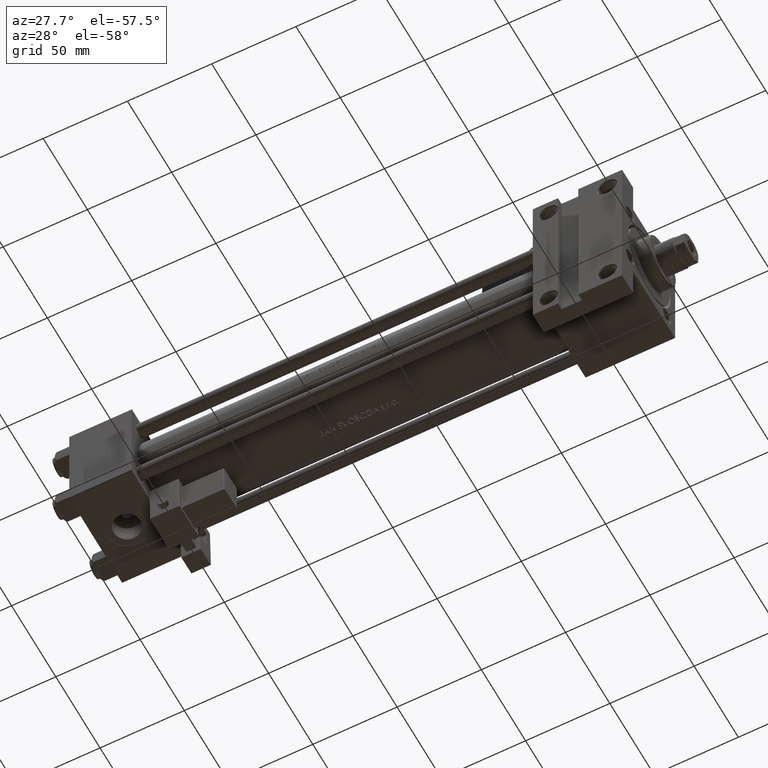
[diagram: clean part render]
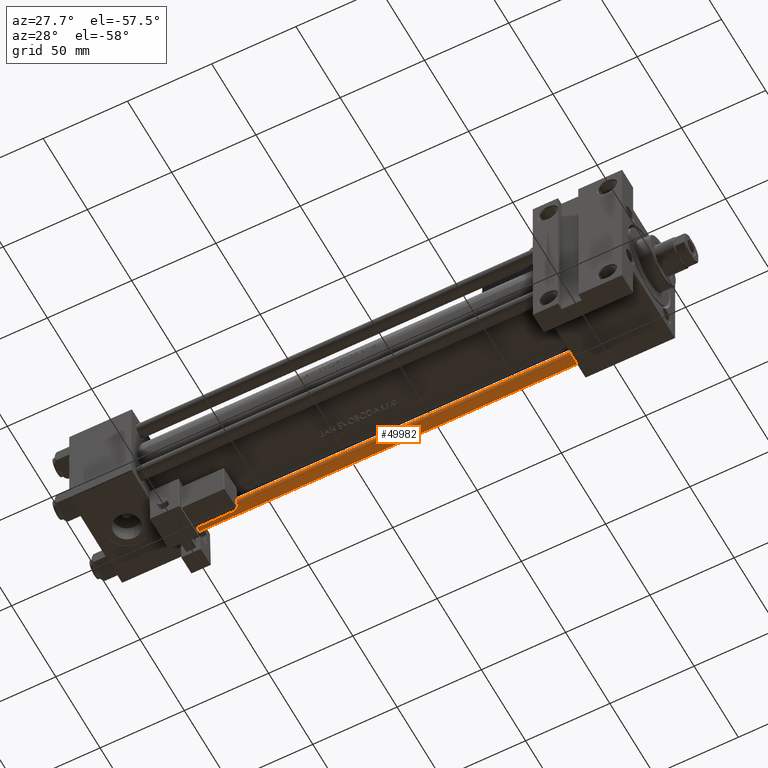
[diagram: same view with one face highlighted and labeled with its STEP entity id]
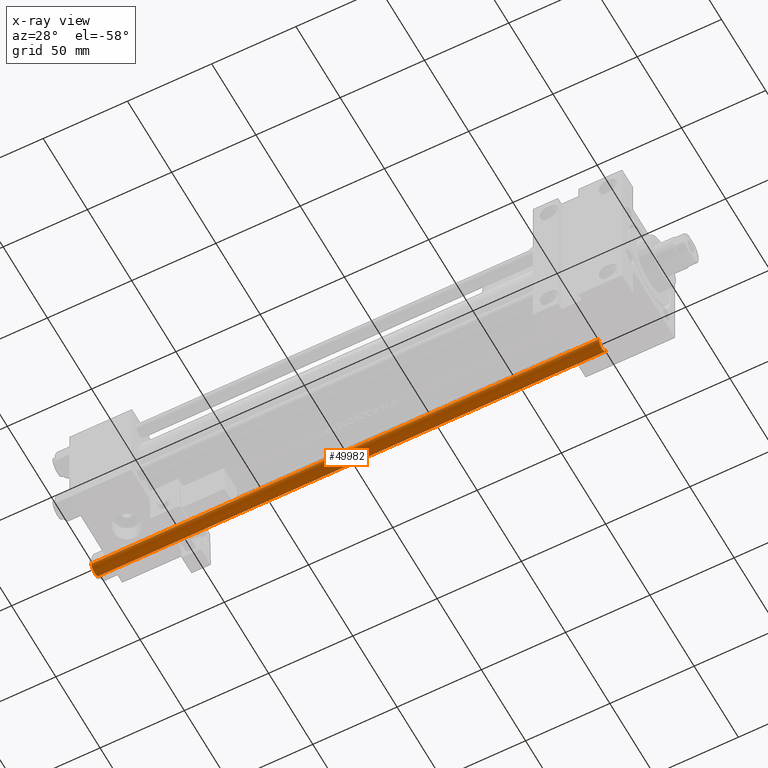
[diagram: x-ray of the same camera — body ghosted, the highlighted face saturated]
A machine part, auxiliary view. The second image highlights one B-rep face of the part: STEP entity #49982.
The next image is the same camera in x-ray: the body ghosted, the highlighted face saturated — about 0% of this face is hidden behind the body in this view.
In plain terms, the highlighted cylindrical surface (edge-blend (fillet) strip) has radius 4 mm, axis along (-1, -0, 0).
Its self-contained STEP definition (entity closure, byte-faithful):
#374 = ORIENTED_EDGE ( 'NONE', *, *, #43025, .F. ) ;
#924 = ORIENTED_EDGE ( 'NONE', *, *, #27342, .T. ) ;
#4311 = DIRECTION ( 'NONE',  ( 0.000000000000000000, 0.000000000000000000, -1.000000000000000000 ) ) ;
#7291 = CIRCLE ( 'NONE', #20179, 4.000000000000000000 ) ;
#9924 = CARTESIAN_POINT ( 'NONE',  ( -4.000000000000000000, 0.000000000000000000, 302.0000000000000000 ) ) ;
#10482 = EDGE_LOOP ( 'NONE', ( #374, #17588, #18956, #924 ) ) ;
#11322 = DIRECTION ( 'NONE',  ( 1.000000000000000000, 0.000000000000000000, 0.000000000000000000 ) ) ;
#11405 = AXIS2_PLACEMENT_3D ( 'NONE', #16393, #4311, #20691 ) ;
#13050 = CARTESIAN_POINT ( 'NONE',  ( 0.000000000000000000, 0.000000000000000000, 302.0000000000000000 ) ) ;
#13128 = CIRCLE ( 'NONE', #11405, 4.000000000000000000 ) ;
#13902 = EDGE_CURVE ( 'NONE', #14065, #20083, #13128, .T. ) ;
#14065 = VERTEX_POINT ( 'NONE', #15278 ) ;
#15278 = CARTESIAN_POINT ( 'NONE',  ( 4.000000000000000000, 4.898587196589412829E-16, 301.4999999999999432 ) ) ;
#15361 = CARTESIAN_POINT ( 'NONE',  ( 0.000000000000000000, 0.000000000000000000, 0.5000000000000559552 ) ) ;
#16393 = CARTESIAN_POINT ( 'NONE',  ( 0.000000000000000000, 0.000000000000000000, 301.4999999999999432 ) ) ;
#16662 = VERTEX_POINT ( 'NONE', #33671 ) ;
#16837 = VECTOR ( 'NONE', #22527, 1000.000000000000000 ) ;
#17588 = ORIENTED_EDGE ( 'NONE', *, *, #13902, .T. ) ;
#18119 = CYLINDRICAL_SURFACE ( 'NONE', #20913, 4.000000000000000000 ) ;
#18398 = VERTEX_POINT ( 'NONE', #25194 ) ;
#18956 = ORIENTED_EDGE ( 'NONE', *, *, #33012, .T. ) ;
#20083 = VERTEX_POINT ( 'NONE', #45714 ) ;
#20179 = AXIS2_PLACEMENT_3D ( 'NONE', #15361, #48011, #11322 ) ;
#20691 = DIRECTION ( 'NONE',  ( 1.000000000000000000, 0.000000000000000000, 0.000000000000000000 ) ) ;
#20913 = AXIS2_PLACEMENT_3D ( 'NONE', #13050, #34455, #29397 ) ;
#21114 = FACE_OUTER_BOUND ( 'NONE', #10482, .T. ) ;
#22527 = DIRECTION ( 'NONE',  ( -0.000000000000000000, -0.000000000000000000, -1.000000000000000000 ) ) ;
#25194 = CARTESIAN_POINT ( 'NONE',  ( -4.000000000000000000, 0.000000000000000000, 0.5000000000000559552 ) ) ;
#27249 = DIRECTION ( 'NONE',  ( -0.000000000000000000, -0.000000000000000000, -1.000000000000000000 ) ) ;
#27342 = EDGE_CURVE ( 'NONE', #18398, #16662, #7291, .T. ) ;
#27497 = CARTESIAN_POINT ( 'NONE',  ( 4.000000000000000000, 4.898587196589412829E-16, 302.0000000000000000 ) ) ;
#29397 = DIRECTION ( 'NONE',  ( -1.000000000000000000, 0.000000000000000000, 0.000000000000000000 ) ) ;
#31780 = LINE ( 'NONE', #27497, #41755 ) ;
#33012 = EDGE_CURVE ( 'NONE', #20083, #18398, #42847, .T. ) ;
#33671 = CARTESIAN_POINT ( 'NONE',  ( 4.000000000000000000, 4.898587196589412829E-16, 0.5000000000000559552 ) ) ;
#34455 = DIRECTION ( 'NONE',  ( -0.000000000000000000, -0.000000000000000000, -1.000000000000000000 ) ) ;
#41755 = VECTOR ( 'NONE', #27249, 1000.000000000000000 ) ;
#42847 = LINE ( 'NONE', #9924, #16837 ) ;
#43025 = EDGE_CURVE ( 'NONE', #14065, #16662, #31780, .T. ) ;
#45714 = CARTESIAN_POINT ( 'NONE',  ( -4.000000000000000000, 0.000000000000000000, 301.4999999999999432 ) ) ;
#48011 = DIRECTION ( 'NONE',  ( -0.000000000000000000, -0.000000000000000000, 1.000000000000000000 ) ) ;
#49982 = ADVANCED_FACE ( 'NONE', ( #21114 ), #18119, .T. ) ;